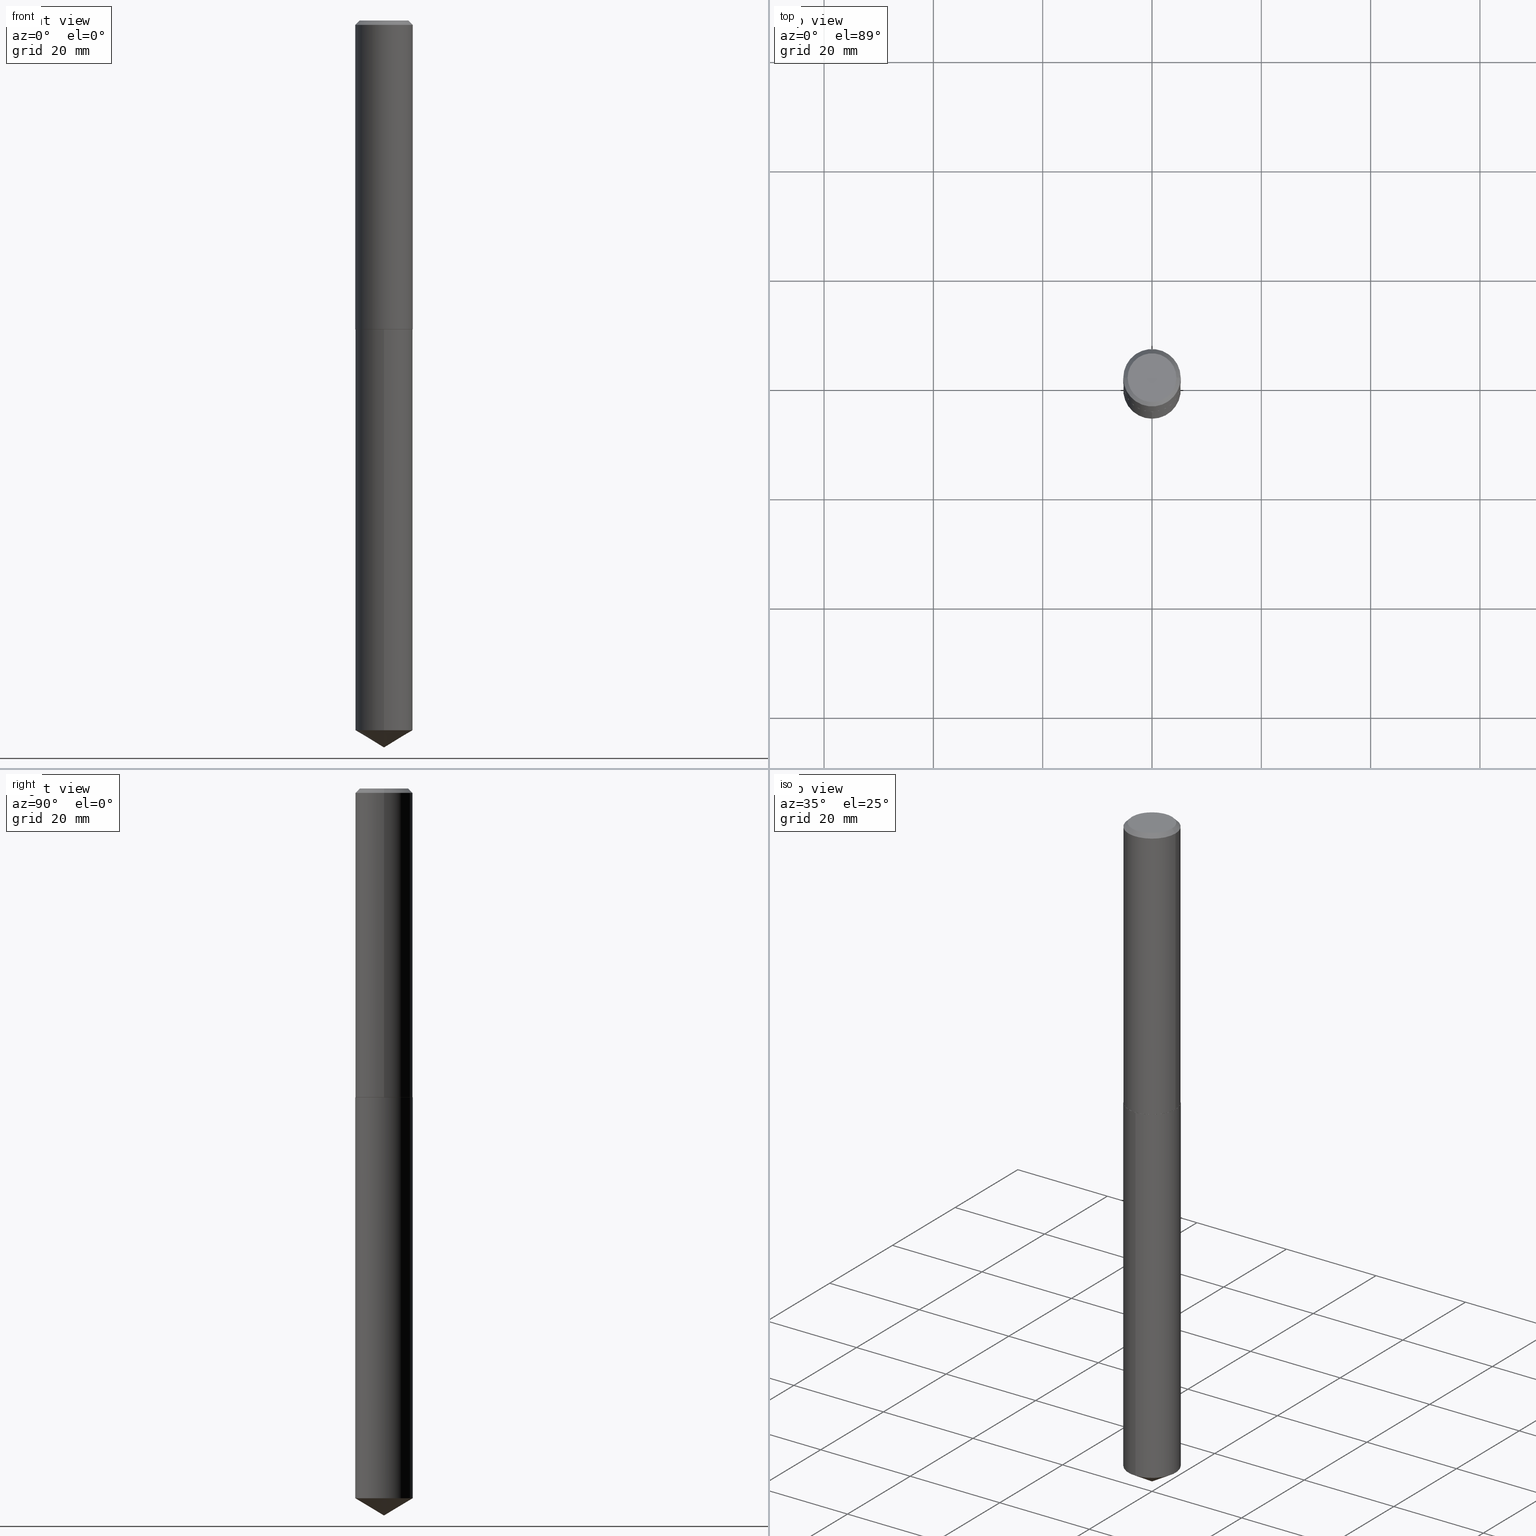
[diagram: canonical four-view strip — front | top / right | iso, engineering-drawing reading convention]
A machine part, canonical four-view strip (front | top / right | iso — engineering-drawing reading convention). The complete STEP part file that produces these views, byte-faithful:
ISO-10303-21;
HEADER;
FILE_DESCRIPTION (( 'STEP AP203' ),
    '1' );
FILE_NAME ('61045.STEP',
    '2024-04-23T02:38:39',
    ( '' ),
    ( '' ),
    'SwSTEP 2.0',
    'SolidWorks 2023',
    '' );
FILE_SCHEMA (( 'CONFIG_CONTROL_DESIGN' ));
ENDSEC;

DATA;
#1 = ORIENTED_EDGE ( 'NONE', *, *, #356, .F. ) ;
#2 = MANIFOLD_SOLID_BREP ( 'Body-Move/Copy2[2]', #152 ) ;
#3 = LINE ( 'NONE', #366, #95 ) ;
#4 = ORIENTED_EDGE ( 'NONE', *, *, #121, .T. ) ;
#5 = ORIENTED_EDGE ( 'NONE', *, *, #25, .T. ) ;
#6 = CARTESIAN_POINT ( 'NONE',  ( -0.1754499999999999948, 1.279715197719478945E-15, 1.206277097151380300E-18 ) ) ;
#7 = AXIS2_PLACEMENT_3D ( 'NONE', #133, #169, #319 ) ;
#8 = DIRECTION ( 'NONE',  ( 1.000000000000000000, -6.982962677686267499E-15, 4.876214437063800301E-29 ) ) ;
#9 = CALENDAR_DATE ( 2024, 22, 4 ) ;
#10 = DIRECTION ( 'NONE',  ( 1.000000000000000000, -6.982962677686265133E-15, 0.000000000000000000 ) ) ;
#11 = DIRECTION ( 'NONE',  ( -2.445583999256879801E-29, 3.491316375808027033E-15, 1.000000000000000000 ) ) ;
#12 = DIRECTION ( 'NONE',  ( 1.000000000000000000, -6.982962677686261977E-15, 0.000000000000000000 ) ) ;
#13 = CARTESIAN_POINT ( 'NONE',  ( -0.2062000000000003830, -6.298662741811254594E-15, -2.224400000000000599 ) ) ;
#14 = DIRECTION ( 'NONE',  ( -2.445468806185136597E-29, 3.491481338843145583E-15, 1.000000000000000000 ) ) ;
#15 = VECTOR ( 'NONE', #345, 39.37007874015748143 ) ;
#16 = CARTESIAN_POINT ( 'NONE',  ( -1.474956506360338605E-47, 2.105846987104252615E-33, 6.031385485800694257E-19 ) ) ;
#17 = APPROVAL_PERSON_ORGANIZATION ( #192, #218, #97 ) ;
#18 = ORIENTED_EDGE ( 'NONE', *, *, #80, .T. ) ;
#19 = CARTESIAN_POINT ( 'NONE',  ( 1.280557143067407498E-28, -1.828123080700599174E-14, -5.236200000000000188 ) ) ;
#20 = EDGE_CURVE ( 'NONE', #27, #254, #190, .T. ) ;
#21 = DIRECTION ( 'NONE',  ( -6.982962677686265133E-15, -1.000000000000000000, 3.964946289788480107E-15 ) ) ;
#22 = APPROVAL_DATE_TIME ( #118, #140 ) ;
#23 = CIRCLE ( 'NONE', #264, 0.1754499999999999948 ) ;
#24 = LOCAL_TIME ( 22, 38, 39.00000000000000000, #92 ) ;
#25 = EDGE_CURVE ( 'NONE', #349, #344, #313, .T. ) ;
#26 =( CONVERSION_BASED_UNIT ( 'INCH', #87 ) LENGTH_UNIT ( ) NAMED_UNIT ( #265 ) );
#27 = VERTEX_POINT ( 'NONE', #156 ) ;
#28 = AXIS2_PLACEMENT_3D ( 'NONE', #132, #257, #222 ) ;
#29 = APPROVAL_DATE_TIME ( #371, #218 ) ;
#30 = ORIENTED_EDGE ( 'NONE', *, *, #352, .T. ) ;
#31 = ORIENTED_EDGE ( 'NONE', *, *, #281, .T. ) ;
#32 = CARTESIAN_POINT ( 'NONE',  ( 1.468691834816181282E-15, 0.2066999999999922510, -2.224400000000001487 ) ) ;
#33 = EDGE_CURVE ( 'NONE', #78, #27, #3, .T. ) ;
#34 = CONICAL_SURFACE ( 'NONE', #328, 0.2067000000000000226, 0.7853981633974449483 ) ;
#35 = EDGE_LOOP ( 'NONE', ( #217, #125 ) ) ;
#36 = DIRECTION ( 'NONE',  ( -5.985567269335953112E-15, -0.8571673007021117785, 0.5150380749100550437 ) ) ;
#37 = CARTESIAN_POINT ( 'NONE',  ( -0.2067000000000002724, -6.296013514637144970E-15, -2.223900000000000432 ) ) ;
#38 = DATE_TIME_ROLE ( 'classification_date' ) ;
#39 = CARTESIAN_POINT ( 'NONE',  ( 5.439700812478219136E-29, -7.766451090122694310E-15, -2.224400000000000599 ) ) ;
#40 = CIRCLE ( 'NONE', #68, 0.1754499999999999948 ) ;
#41 = DIRECTION ( 'NONE',  ( -6.982962677686265133E-15, -1.000000000000000000, 5.286595053051307336E-15 ) ) ;
#42 = CARTESIAN_POINT ( 'NONE',  ( 0.2067000000000002724, -9.208083734931026389E-15, -2.223900000000000432 ) ) ;
#43 = APPLICATION_CONTEXT ( 'configuration controlled 3d designs of mechanical parts and assemblies' ) ;
#44 = CC_DESIGN_PERSON_AND_ORGANIZATION_ASSIGNMENT ( #145, #54, ( #253 ) ) ;
#45 = CARTESIAN_POINT ( 'NONE',  ( -1.443378385477626181E-15, -0.2067000000000178694, -5.112002110047003001 ) ) ;
#46 = DIRECTION ( 'NONE',  ( 0.7071067811865451302, -7.319954787623248157E-15, -0.7071067811865499042 ) ) ;
#47 = DIRECTION ( 'NONE',  ( 1.000000000000000000, -6.982962677686261977E-15, 0.000000000000000000 ) ) ;
#48 = ORIENTED_EDGE ( 'NONE', *, *, #93, .F. ) ;
#49 = VECTOR ( 'NONE', #36, 39.37007874015748143 ) ;
#50 = DIRECTION ( 'NONE',  ( -2.445468806185136597E-29, 3.491481338843145583E-15, 1.000000000000000000 ) ) ;
#51 = CONICAL_SURFACE ( 'NONE', #153, 0.2067000000000000226, 0.7853981633974449483 ) ;
#52 = DIRECTION ( 'NONE',  ( -6.982962677686265133E-15, -1.000000000000000000, 5.286595053051307336E-15 ) ) ;
#53 = PERSON_AND_ORGANIZATION ( #282, #343 ) ;
#54 = PERSON_AND_ORGANIZATION_ROLE ( 'design_owner' ) ;
#55 = AXIS2_PLACEMENT_3D ( 'NONE', #314, #339, #138 ) ;
#56 = EDGE_CURVE ( 'NONE', #62, #201, #369, .T. ) ;
#57 = DIRECTION ( 'NONE',  ( 2.445583999256879240E-29, -3.491316375808027033E-15, -1.000000000000000000 ) ) ;
#58 = PERSON_AND_ORGANIZATION ( #282, #343 ) ;
#59 = ORIENTED_EDGE ( 'NONE', *, *, #25, .F. ) ;
#60 = AXIS2_PLACEMENT_3D ( 'NONE', #377, #108, #102 ) ;
#61 = CC_DESIGN_DATE_AND_TIME_ASSIGNMENT ( #231, #299, ( #131 ) ) ;
#62 = VERTEX_POINT ( 'NONE', #73 ) ;
#63 = APPLICATION_CONTEXT ( 'configuration controlled 3d designs of mechanical parts and assemblies' ) ;
#64 = ORIENTED_EDGE ( 'NONE', *, *, #137, .F. ) ;
#65 = MECHANICAL_CONTEXT ( 'NONE', #43, 'mechanical' ) ;
#66 = CC_DESIGN_DATE_AND_TIME_ASSIGNMENT ( #180, #38, ( #115 ) ) ;
#67 = DIRECTION ( 'NONE',  ( -0.7071067811865451302, 2.468850131082231817E-15, -0.7071067811865499042 ) ) ;
#68 = AXIS2_PLACEMENT_3D ( 'NONE', #146, #271, #8 ) ;
#69 = APPROVAL_PERSON_ORGANIZATION ( #242, #140, #177 ) ;
#70 = ORIENTED_EDGE ( 'NONE', *, *, #137, .T. ) ;
#71 = DIRECTION ( 'NONE',  ( -2.445583999256879801E-29, 3.491316375808027033E-15, 1.000000000000000000 ) ) ;
#72 = PERSON_AND_ORGANIZATION_ROLE ( 'classification_officer' ) ;
#73 = CARTESIAN_POINT ( 'NONE',  ( 0.2067000000000002724, -9.208083734931026389E-15, -2.223900000000000432 ) ) ;
#74 = DIRECTION ( 'NONE',  ( -2.438088387897960049E-29, 3.491481338843145188E-15, 1.000000000000000000 ) ) ;
#75 = AXIS2_PLACEMENT_3D ( 'NONE', #39, #225, #10 ) ;
#76 = DIRECTION ( 'NONE',  ( 1.000000000000000000, -6.982962677686265133E-15, 0.000000000000000000 ) ) ;
#77 = LINE ( 'NONE', #232, #361 ) ;
#78 = VERTEX_POINT ( 'NONE', #6 ) ;
#79 = DIRECTION ( 'NONE',  ( -2.445583999256879801E-29, 3.491316375808027033E-15, 1.000000000000000000 ) ) ;
#80 = EDGE_CURVE ( 'NONE', #335, #216, #262, .T. ) ;
#81 = DIRECTION ( 'NONE',  ( 1.000000000000000000, -6.982962677686266711E-15, 4.876176775795936914E-29 ) ) ;
#82 = DIRECTION ( 'NONE',  ( 2.445468806185136597E-29, -3.491481338843145583E-15, -1.000000000000000000 ) ) ;
#83 = ORIENTED_EDGE ( 'NONE', *, *, #281, .F. ) ;
#84 = CIRCLE ( 'NONE', #247, 0.2062000000000003830 ) ;
#85 = DATE_AND_TIME ( #240, #388 ) ;
#86 = CARTESIAN_POINT ( 'NONE',  ( 5.438478078075126334E-29, -7.764705349453273595E-15, -2.223900000000000432 ) ) ;
#87 = LENGTH_MEASURE_WITH_UNIT ( LENGTH_MEASURE( 0.02539999999999999897 ), #305 );
#88 = COORDINATED_UNIVERSAL_TIME_OFFSET ( 5, 0, .BEHIND. ) ;
#89 = ADVANCED_FACE ( 'NONE', ( #290 ), #341, .T. ) ;
#90 = CONICAL_SURFACE ( 'NONE', #219, 65.52281426576880108, 1.029744258676656976 ) ;
#91 = VECTOR ( 'NONE', #207, 39.37007874015748854 ) ;
#92 = COORDINATED_UNIVERSAL_TIME_OFFSET ( 5, 0, .BEHIND. ) ;
#93 = EDGE_CURVE ( 'NONE', #254, #27, #114, .T. ) ;
#94 = ORIENTED_EDGE ( 'NONE', *, *, #179, .F. ) ;
#95 = VECTOR ( 'NONE', #67, 39.37007874015748143 ) ;
#96 =( GEOMETRIC_REPRESENTATION_CONTEXT ( 3 ) GLOBAL_UNCERTAINTY_ASSIGNED_CONTEXT ( ( #220 ) ) GLOBAL_UNIT_ASSIGNED_CONTEXT ( ( #26, #199, #230 ) ) REPRESENTATION_CONTEXT ( 'NONE', 'WORKASPACE' ) );
#97 = APPROVAL_ROLE ( '' ) ;
#98 = VERTEX_POINT ( 'NONE', #194 ) ;
#99 = ORIENTED_EDGE ( 'NONE', *, *, #121, .F. ) ;
#100 = VERTEX_POINT ( 'NONE', #13 ) ;
#101 = AXIS2_PLACEMENT_3D ( 'NONE', #248, #278, #363 ) ;
#102 = DIRECTION ( 'NONE',  ( 1.000000000000000000, -6.982962677686265133E-15, 0.000000000000000000 ) ) ;
#103 = FACE_OUTER_BOUND ( 'NONE', #184, .T. ) ;
#104 = CARTESIAN_POINT ( 'NONE',  ( 1.468691834816251885E-15, 0.2066999999999821203, -5.112002110047005665 ) ) ;
#105 = CARTESIAN_POINT ( 'NONE',  ( 1.250157432902957539E-28, -1.784798362374761104E-14, -5.112002110047003889 ) ) ;
#106 = LINE ( 'NONE', #327, #141 ) ;
#107 = ORIENTED_EDGE ( 'NONE', *, *, #325, .F. ) ;
#108 = DIRECTION ( 'NONE',  ( -2.445468806185136597E-29, 3.491481338843145583E-15, 1.000000000000000000 ) ) ;
#109 = FACE_OUTER_BOUND ( 'NONE', #360, .T. ) ;
#110 = EDGE_CURVE ( 'NONE', #349, #216, #158, .T. ) ;
#111 = ORIENTED_EDGE ( 'NONE', *, *, #110, .F. ) ;
#112 = PERSON_AND_ORGANIZATION ( #282, #343 ) ;
#113 = CARTESIAN_POINT ( 'NONE',  ( 5.438478078075126334E-29, -7.764705349453273595E-15, -2.223900000000000432 ) ) ;
#114 = CIRCLE ( 'NONE', #60, 0.2067000000000000226 ) ;
#115 = SECURITY_CLASSIFICATION ( '', '', #245 ) ;
#116 = PRODUCT_DEFINITION_FORMATION_WITH_SPECIFIED_SOURCE ( 'ANY', '', #253, .NOT_KNOWN. ) ;
#117 = DIRECTION ( 'NONE',  ( -6.982962677686265133E-15, -1.000000000000000000, 3.964946289788480107E-15 ) ) ;
#118 = DATE_AND_TIME ( #385, #383 ) ;
#119 = ADVANCED_FACE ( 'NONE', ( #103 ), #90, .T. ) ;
#120 = LOCAL_TIME ( 22, 38, 39.00000000000000000, #307 ) ;
#121 = EDGE_CURVE ( 'NONE', #62, #254, #316, .T. ) ;
#122 = ORIENTED_EDGE ( 'NONE', *, *, #365, .F. ) ;
#123 = EDGE_LOOP ( 'NONE', ( #277, #143, #275, #107 ) ) ;
#124 = APPROVAL_STATUS ( 'not_yet_approved' ) ;
#125 = ORIENTED_EDGE ( 'NONE', *, *, #234, .T. ) ;
#126 = CIRCLE ( 'NONE', #239, 0.2067000000000002724 ) ;
#127 = ORIENTED_EDGE ( 'NONE', *, *, #20, .F. ) ;
#128 = ORIENTED_EDGE ( 'NONE', *, *, #261, .F. ) ;
#129 = ORIENTED_EDGE ( 'NONE', *, *, #189, .F. ) ;
#130 = CARTESIAN_POINT ( 'NONE',  ( 5.439700812478219136E-29, -7.766451090122694310E-15, -2.224400000000000599 ) ) ;
#131 = PRODUCT_DEFINITION ( 'UNKNOWN', '', #116, #134 ) ;
#132 = CARTESIAN_POINT ( 'NONE',  ( 5.439700812478219136E-29, -7.766451090122694310E-15, -2.224400000000000599 ) ) ;
#133 = CARTESIAN_POINT ( 'NONE',  ( 5.439700812478219136E-29, -7.766451090122694310E-15, -2.224400000000000599 ) ) ;
#134 = DESIGN_CONTEXT ( 'detailed design', #63, 'design' ) ;
#135 = CARTESIAN_POINT ( 'NONE',  ( 0.2067000000000001336, -1.443378385477752202E-15, 1.007905739557020761E-29 ) ) ;
#136 = FACE_OUTER_BOUND ( 'NONE', #246, .T. ) ;
#137 = EDGE_CURVE ( 'NONE', #216, #349, #358, .T. ) ;
#138 = DIRECTION ( 'NONE',  ( 1.000000000000000000, -6.982962677686261977E-15, 0.000000000000000000 ) ) ;
#139 = DIRECTION ( 'NONE',  ( -0.7071067811865474617, 7.493145998870352582E-15, 0.7071067811865474617 ) ) ;
#140 = APPROVAL ( #209, 'UNSPECIFIED' ) ;
#141 = VECTOR ( 'NONE', #46, 39.37007874015748143 ) ;
#142 = CARTESIAN_POINT ( 'NONE',  ( 7.642090019328604414E-31, -1.091087918388490513E-16, -0.03125000000000021511 ) ) ;
#143 = ORIENTED_EDGE ( 'NONE', *, *, #261, .T. ) ;
#144 = DIRECTION ( 'NONE',  ( -1.000000000000000000, 6.982962677686265922E-15, -4.876176775795935793E-29 ) ) ;
#145 = PERSON_AND_ORGANIZATION ( #282, #343 ) ;
#146 = CARTESIAN_POINT ( 'NONE',  ( -2.949913012720677210E-47, 4.211693974208505230E-33, 1.206277097160138851E-18 ) ) ;
#147 = CIRCLE ( 'NONE', #28, 0.2067000000000000226 ) ;
#148 = CC_DESIGN_APPROVAL ( #140, ( #131 ) ) ;
#149 = ADVANCED_FACE ( 'NONE', ( #166 ), #259, .T. ) ;
#150 = CC_DESIGN_PERSON_AND_ORGANIZATION_ASSIGNMENT ( #58, #256, ( #116 ) ) ;
#151 = DIRECTION ( 'NONE',  ( -2.445583999256879801E-29, 3.491316375808027033E-15, 1.000000000000000000 ) ) ;
#152 = CLOSED_SHELL ( 'NONE', ( #215, #252, #294, #289, #268, #149, #353, #322 ) ) ;
#153 = AXIS2_PLACEMENT_3D ( 'NONE', #142, #82, #164 ) ;
#154 = EDGE_LOOP ( 'NONE', ( #70, #5, #129, #94 ) ) ;
#155 = EDGE_LOOP ( 'NONE', ( #298, #31, #191, #389 ) ) ;
#156 = CARTESIAN_POINT ( 'NONE',  ( -0.2067000000000000226, -2.468215235829932328E-15, -0.03125000000000021511 ) ) ;
#157 = CC_DESIGN_PERSON_AND_ORGANIZATION_ASSIGNMENT ( #53, #386, ( #116 ) ) ;
#158 = CIRCLE ( 'NONE', #274, 0.2067000000000000226 ) ;
#159 = ORIENTED_EDGE ( 'NONE', *, *, #208, .T. ) ;
#160 = APPLICATION_PROTOCOL_DEFINITION ( 'international standard', 'config_control_design', 1994, #43 ) ;
#161 = LINE ( 'NONE', #370, #244 ) ;
#162 = CC_DESIGN_PERSON_AND_ORGANIZATION_ASSIGNMENT ( #112, #357, ( #131 ) ) ;
#163 = SHAPE_DEFINITION_REPRESENTATION ( #387, #376 ) ;
#164 = DIRECTION ( 'NONE',  ( -1.000000000000000000, 6.982962677686265133E-15, 0.000000000000000000 ) ) ;
#165 = AXIS2_PLACEMENT_3D ( 'NONE', #113, #236, #47 ) ;
#166 = FACE_OUTER_BOUND ( 'NONE', #170, .T. ) ;
#167 = LINE ( 'NONE', #42, #297 ) ;
#168 = PLANE ( 'NONE',  #330 ) ;
#169 = DIRECTION ( 'NONE',  ( -2.445583999256879801E-29, 3.491316375808027033E-15, 1.000000000000000000 ) ) ;
#170 = EDGE_LOOP ( 'NONE', ( #205, #333, #4, #127 ) ) ;
#171 = AXIS2_PLACEMENT_3D ( 'NONE', #374, #384, #117 ) ;
#172 = AXIS2_PLACEMENT_3D ( 'NONE', #223, #57, #355 ) ;
#173 = CARTESIAN_POINT ( 'NONE',  ( 1.468691834816252279E-15, 0.2066999999999922510, -2.224400000000001487 ) ) ;
#174 = FACE_OUTER_BOUND ( 'NONE', #155, .T. ) ;
#175 = AXIS2_PLACEMENT_3D ( 'NONE', #266, #293, #291 ) ;
#176 = PERSON_AND_ORGANIZATION ( #282, #343 ) ;
#177 = APPROVAL_ROLE ( '' ) ;
#178 = CARTESIAN_POINT ( 'NONE',  ( -1.443378385477696981E-15, -0.2067000000000077664, -2.224399999999999711 ) ) ;
#179 = EDGE_CURVE ( 'NONE', #216, #381, #161, .T. ) ;
#180 = DATE_AND_TIME ( #9, #24 ) ;
#181 = ORIENTED_EDGE ( 'NONE', *, *, #250, .T. ) ;
#182 = AXIS2_PLACEMENT_3D ( 'NONE', #280, #50, #81 ) ;
#183 = PERSON_AND_ORGANIZATION ( #282, #343 ) ;
#184 = EDGE_LOOP ( 'NONE', ( #1, #18, #111 ) ) ;
#185 = APPROVAL ( #347, 'UNSPECIFIED' ) ;
#186 = ORIENTED_EDGE ( 'NONE', *, *, #208, .F. ) ;
#187 = CYLINDRICAL_SURFACE ( 'NONE', #182, 0.2067000000000001336 ) ;
#188 = EDGE_LOOP ( 'NONE', ( #359, #30, #48, #99 ) ) ;
#189 = EDGE_CURVE ( 'NONE', #381, #344, #210, .T. ) ;
#190 = CIRCLE ( 'NONE', #101, 0.2067000000000000226 ) ;
#191 = ORIENTED_EDGE ( 'NONE', *, *, #93, .T. ) ;
#192 = PERSON_AND_ORGANIZATION ( #282, #343 ) ;
#193 = CARTESIAN_POINT ( 'NONE',  ( 7.642090019328604414E-31, -1.091087918388490513E-16, -0.03125000000000021511 ) ) ;
#194 = CARTESIAN_POINT ( 'NONE',  ( 0.2062000000000003830, -9.206337994261605674E-15, -2.224400000000000599 ) ) ;
#195 = CYLINDRICAL_SURFACE ( 'NONE', #7, 0.2067000000000000226 ) ;
#196 = AXIS2_PLACEMENT_3D ( 'NONE', #346, #342, #203 ) ;
#197 = APPROVAL_PERSON_ORGANIZATION ( #176, #185, #235 ) ;
#198 = CARTESIAN_POINT ( 'NONE',  ( 1.250157432902957539E-28, -1.784798362374761104E-14, -5.112002110047003889 ) ) ;
#199 =( NAMED_UNIT ( * ) PLANE_ANGLE_UNIT ( ) SI_UNIT ( $, .RADIAN. ) );
#200 = FACE_OUTER_BOUND ( 'NONE', #123, .T. ) ;
#201 = VERTEX_POINT ( 'NONE', #37 ) ;
#202 = DIRECTION ( 'NONE',  ( 1.000000000000000000, -6.982962677686266711E-15, 4.876176775795936914E-29 ) ) ;
#203 = DIRECTION ( 'NONE',  ( 1.000000000000000000, -6.982962677686261977E-15, 0.000000000000000000 ) ) ;
#204 = LINE ( 'NONE', #19, #91 ) ;
#205 = ORIENTED_EDGE ( 'NONE', *, *, #352, .F. ) ;
#206 = APPROVAL_DATE_TIME ( #85, #185 ) ;
#207 = DIRECTION ( 'NONE',  ( 6.090539988449788691E-15, 0.8571673007021154422, 0.5150380749100490485 ) ) ;
#208 = EDGE_CURVE ( 'NONE', #100, #98, #84, .T. ) ;
#209 = APPROVAL_STATUS ( 'not_yet_approved' ) ;
#210 = CIRCLE ( 'NONE', #171, 0.2067000000000000226 ) ;
#211 = CALENDAR_DATE ( 2024, 22, 4 ) ;
#212 = EDGE_LOOP ( 'NONE', ( #128, #159, #337, #276 ) ) ;
#213 = ORIENTED_EDGE ( 'NONE', *, *, #250, .F. ) ;
#214 = CIRCLE ( 'NONE', #75, 0.2062000000000003830 ) ;
#215 = ADVANCED_FACE ( 'NONE', ( #174 ), #34, .T. ) ;
#216 = VERTEX_POINT ( 'NONE', #45 ) ;
#217 = ORIENTED_EDGE ( 'NONE', *, *, #227, .T. ) ;
#218 = APPROVAL ( #124, 'UNSPECIFIED' ) ;
#219 = AXIS2_PLACEMENT_3D ( 'NONE', #228, #354, #317 ) ;
#220 = UNCERTAINTY_MEASURE_WITH_UNIT (LENGTH_MEASURE( 1.000000000000000082E-05 ), #26, 'distance_accuracy_value', 'NONE');
#221 = CARTESIAN_POINT ( 'NONE',  ( 0.000000000000000000, 0.000000000000000000, 0.000000000000000000 ) ) ;
#222 = DIRECTION ( 'NONE',  ( -6.982962677686265133E-15, -1.000000000000000000, 3.964946289788480107E-15 ) ) ;
#223 = CARTESIAN_POINT ( 'NONE',  ( 5.439700812478219136E-29, -7.766451090122694310E-15, -2.224400000000000599 ) ) ;
#224 = DIRECTION ( 'NONE',  ( -1.000000000000000000, 6.982962677686265133E-15, 0.000000000000000000 ) ) ;
#225 = DIRECTION ( 'NONE',  ( -2.445468806185136597E-29, 3.491481338843145583E-15, 1.000000000000000000 ) ) ;
#226 = LOCAL_TIME ( 22, 38, 39.00000000000000000, #88 ) ;
#227 = EDGE_CURVE ( 'NONE', #78, #312, #23, .T. ) ;
#228 = CARTESIAN_POINT ( 'NONE',  ( -8.347752391497250692E-28, 1.191718028715819728E-13, 34.13387874015747769 ) ) ;
#229 = FACE_OUTER_BOUND ( 'NONE', #212, .T. ) ;
#230 =( NAMED_UNIT ( * ) SI_UNIT ( $, .STERADIAN. ) SOLID_ANGLE_UNIT ( ) );
#231 = DATE_AND_TIME ( #211, #226 ) ;
#232 = CARTESIAN_POINT ( 'NONE',  ( -0.2067000000000002724, -6.296013514637144970E-15, -2.223900000000000432 ) ) ;
#233 = EDGE_LOOP ( 'NONE', ( #59, #390, #267, #213 ) ) ;
#234 = EDGE_CURVE ( 'NONE', #312, #78, #40, .T. ) ;
#235 = APPROVAL_ROLE ( '' ) ;
#236 = DIRECTION ( 'NONE',  ( -2.445468806185136597E-29, 3.491481338843145583E-15, 1.000000000000000000 ) ) ;
#237 = AXIS2_PLACEMENT_3D ( 'NONE', #221, #338, #202 ) ;
#238 = CONICAL_SURFACE ( 'NONE', #175, 65.52281426576880108, 1.029744258676656976 ) ;
#239 = AXIS2_PLACEMENT_3D ( 'NONE', #86, #14, #12 ) ;
#240 = CALENDAR_DATE ( 2024, 22, 4 ) ;
#241 = DIRECTION ( 'NONE',  ( -2.445583999256879801E-29, 3.491316375808027033E-15, 1.000000000000000000 ) ) ;
#242 = PERSON_AND_ORGANIZATION ( #282, #343 ) ;
#243 = CARTESIAN_POINT ( 'NONE',  ( 0.000000000000000000, 0.000000000000000000, 0.000000000000000000 ) ) ;
#244 = VECTOR ( 'NONE', #71, 39.37007874015748143 ) ;
#245 = SECURITY_CLASSIFICATION_LEVEL ( 'unclassified' ) ;
#246 = EDGE_LOOP ( 'NONE', ( #368, #310, #64 ) ) ;
#247 = AXIS2_PLACEMENT_3D ( 'NONE', #130, #372, #76 ) ;
#248 = CARTESIAN_POINT ( 'NONE',  ( 7.642090019328604414E-31, -1.091087918388490513E-16, -0.03125000000000021511 ) ) ;
#249 = FACE_OUTER_BOUND ( 'NONE', #188, .T. ) ;
#250 = EDGE_CURVE ( 'NONE', #344, #381, #147, .T. ) ;
#251 = EDGE_LOOP ( 'NONE', ( #323, #181 ) ) ;
#252 = ADVANCED_FACE ( 'NONE', ( #249 ), #187, .T. ) ;
#253 = PRODUCT ( '61045', '61045', '', ( #65 ) ) ;
#254 = VERTEX_POINT ( 'NONE', #380 ) ;
#255 = CARTESIAN_POINT ( 'NONE',  ( 1.280505446597130309E-28, -1.828196469455662794E-14, -5.236200000000000188 ) ) ;
#256 = PERSON_AND_ORGANIZATION_ROLE ( 'design_supplier' ) ;
#257 = DIRECTION ( 'NONE',  ( -2.445583999256879801E-29, 3.491316375808027033E-15, 1.000000000000000000 ) ) ;
#258 = FACE_OUTER_BOUND ( 'NONE', #251, .T. ) ;
#259 = CYLINDRICAL_SURFACE ( 'NONE', #237, 0.2067000000000001336 ) ;
#260 = CARTESIAN_POINT ( 'NONE',  ( 1.280556693690887530E-28, -1.828123080700599174E-14, -5.236200000000000188 ) ) ;
#261 = EDGE_CURVE ( 'NONE', #100, #201, #77, .T. ) ;
#262 = LINE ( 'NONE', #255, #49 ) ;
#263 = CARTESIAN_POINT ( 'NONE',  ( 0.1754499999999999948, -1.365424050843619950E-15, 1.206277097169196885E-18 ) ) ;
#264 = AXIS2_PLACEMENT_3D ( 'NONE', #301, #284, #321 ) ;
#265 = DIMENSIONAL_EXPONENTS ( 1.000000000000000000, 0.000000000000000000, 0.000000000000000000, 0.000000000000000000, 0.000000000000000000, 0.000000000000000000, 0.000000000000000000 ) ;
#266 = CARTESIAN_POINT ( 'NONE',  ( -8.347752391497250692E-28, 1.191718028715819728E-13, 34.13387874015747769 ) ) ;
#267 = ORIENTED_EDGE ( 'NONE', *, *, #179, .T. ) ;
#268 = ADVANCED_FACE ( 'NONE', ( #229 ), #285, .T. ) ;
#269 = CARTESIAN_POINT ( 'NONE',  ( -0.2067000000000001336, 1.468691834816128034E-15, -1.016743883155689846E-29 ) ) ;
#270 = AXIS2_PLACEMENT_3D ( 'NONE', #198, #79, #41 ) ;
#271 = DIRECTION ( 'NONE',  ( -2.445468806185136597E-29, 3.491481338843145583E-15, 1.000000000000000000 ) ) ;
#272 = MANIFOLD_SOLID_BREP ( 'Body-Move/Copy2[1]', #302 ) ;
#273 = APPLICATION_PROTOCOL_DEFINITION ( 'international standard', 'config_control_design', 1994, #63 ) ;
#274 = AXIS2_PLACEMENT_3D ( 'NONE', #105, #241, #52 ) ;
#275 = ORIENTED_EDGE ( 'NONE', *, *, #56, .F. ) ;
#276 = ORIENTED_EDGE ( 'NONE', *, *, #315, .F. ) ;
#277 = ORIENTED_EDGE ( 'NONE', *, *, #365, .T. ) ;
#278 = DIRECTION ( 'NONE',  ( -2.445468806185136597E-29, 3.491481338843145583E-15, 1.000000000000000000 ) ) ;
#279 = CC_DESIGN_APPROVAL ( #218, ( #115 ) ) ;
#280 = CARTESIAN_POINT ( 'NONE',  ( 0.000000000000000000, 0.000000000000000000, 0.000000000000000000 ) ) ;
#281 = EDGE_CURVE ( 'NONE', #312, #254, #106, .T. ) ;
#282 = PERSON ( 'UNSPECIFIED', 'UNSPECIFIED', 'UNSPECIFIED', ('UNSPECIFIED'), ('UNSPECIFIED'), ('UNSPECIFIED') ) ;
#283 = EDGE_LOOP ( 'NONE', ( #122, #186 ) ) ;
#284 = DIRECTION ( 'NONE',  ( -2.445468806185136597E-29, 3.491481338843145583E-15, 1.000000000000000000 ) ) ;
#285 = CONICAL_SURFACE ( 'NONE', #196, 0.2067000000000002724, 0.7853981633974482790 ) ;
#286 = DIRECTION ( 'NONE',  ( 0.7071067811865474617, -2.468850131082256666E-15, 0.7071067811865474617 ) ) ;
#287 = CC_DESIGN_APPROVAL ( #185, ( #116 ) ) ;
#288 = CC_DESIGN_SECURITY_CLASSIFICATION ( #115, ( #116 ) ) ;
#289 = ADVANCED_FACE ( 'NONE', ( #326 ), #168, .F. ) ;
#290 = FACE_OUTER_BOUND ( 'NONE', #154, .T. ) ;
#291 = DIRECTION ( 'NONE',  ( -6.982962677686266711E-15, -1.000000000000000000, 3.468864327941574493E-15 ) ) ;
#292 = CARTESIAN_POINT ( 'NONE',  ( 5.439700812478219136E-29, -7.766451090122694310E-15, -2.224400000000000599 ) ) ;
#293 = DIRECTION ( 'NONE',  ( -2.445583999256879801E-29, 3.491316375808027033E-15, 1.000000000000000000 ) ) ;
#294 = ADVANCED_FACE ( 'NONE', ( #200 ), #308, .T. ) ;
#295 = PLANE ( 'NONE',  #362 ) ;
#296 = CC_DESIGN_PERSON_AND_ORGANIZATION_ASSIGNMENT ( #183, #72, ( #115 ) ) ;
#297 = VECTOR ( 'NONE', #286, 39.37007874015748854 ) ;
#298 = ORIENTED_EDGE ( 'NONE', *, *, #234, .F. ) ;
#299 = DATE_TIME_ROLE ( 'creation_date' ) ;
#300 = LINE ( 'NONE', #269, #320 ) ;
#301 = CARTESIAN_POINT ( 'NONE',  ( -2.949913012720677210E-47, 4.211693974208505230E-33, 1.206277097160138851E-18 ) ) ;
#302 = CLOSED_SHELL ( 'NONE', ( #89, #306, #119, #303, #379 ) ) ;
#303 = ADVANCED_FACE ( 'NONE', ( #373 ), #195, .T. ) ;
#304 = COORDINATED_UNIVERSAL_TIME_OFFSET ( 5, 0, .BEHIND. ) ;
#305 =( LENGTH_UNIT ( ) NAMED_UNIT ( * ) SI_UNIT ( $, .METRE. ) );
#306 = ADVANCED_FACE ( 'NONE', ( #136 ), #238, .T. ) ;
#307 = COORDINATED_UNIVERSAL_TIME_OFFSET ( 5, 0, .BEHIND. ) ;
#308 = CONICAL_SURFACE ( 'NONE', #165, 0.2067000000000002724, 0.7853981633974482790 ) ;
#309 = AXIS2_PLACEMENT_3D ( 'NONE', #243, #332, #364 ) ;
#310 = ORIENTED_EDGE ( 'NONE', *, *, #356, .T. ) ;
#311 = CALENDAR_DATE ( 2024, 22, 4 ) ;
#312 = VERTEX_POINT ( 'NONE', #263 ) ;
#313 = LINE ( 'NONE', #32, #336 ) ;
#314 = CARTESIAN_POINT ( 'NONE',  ( 5.438478078075126334E-29, -7.764705349453273595E-15, -2.223900000000000432 ) ) ;
#315 = EDGE_CURVE ( 'NONE', #201, #62, #126, .T. ) ;
#316 = LINE ( 'NONE', #135, #15 ) ;
#317 = DIRECTION ( 'NONE',  ( -6.982962677686266711E-15, -1.000000000000000000, 3.468864327941574493E-15 ) ) ;
#318 = AXIS2_PLACEMENT_3D ( 'NONE', #292, #11, #21 ) ;
#319 = DIRECTION ( 'NONE',  ( -6.982962677686265133E-15, -1.000000000000000000, 3.964946289788480107E-15 ) ) ;
#320 = VECTOR ( 'NONE', #351, 39.37007874015748143 ) ;
#321 = DIRECTION ( 'NONE',  ( 1.000000000000000000, -6.982962677686267499E-15, 4.876214437063800301E-29 ) ) ;
#322 = ADVANCED_FACE ( 'NONE', ( #382 ), #295, .F. ) ;
#323 = ORIENTED_EDGE ( 'NONE', *, *, #189, .T. ) ;
#324 = DIRECTION ( 'NONE',  ( 2.445468806185136597E-29, -3.491481338843145583E-15, -1.000000000000000000 ) ) ;
#325 = EDGE_CURVE ( 'NONE', #98, #62, #167, .T. ) ;
#326 = FACE_OUTER_BOUND ( 'NONE', #283, .T. ) ;
#327 = CARTESIAN_POINT ( 'NONE',  ( 0.2067000000000000226, -1.527173727978224681E-15, -0.03125000000000021511 ) ) ;
#328 = AXIS2_PLACEMENT_3D ( 'NONE', #193, #324, #224 ) ;
#329 = ORIENTED_EDGE ( 'NONE', *, *, #227, .F. ) ;
#330 = AXIS2_PLACEMENT_3D ( 'NONE', #340, #74, #348 ) ;
#331 = ORIENTED_EDGE ( 'NONE', *, *, #20, .T. ) ;
#332 = DIRECTION ( 'NONE',  ( 0.000000000000000000, 0.000000000000000000, 1.000000000000000000 ) ) ;
#333 = ORIENTED_EDGE ( 'NONE', *, *, #315, .T. ) ;
#334 = PRODUCT_RELATED_PRODUCT_CATEGORY ( 'detail', '', ( #253 ) ) ;
#335 = VERTEX_POINT ( 'NONE', #260 ) ;
#336 = VECTOR ( 'NONE', #151, 39.37007874015748143 ) ;
#337 = ORIENTED_EDGE ( 'NONE', *, *, #325, .T. ) ;
#338 = DIRECTION ( 'NONE',  ( -2.445468806185136597E-29, 3.491481338843145583E-15, 1.000000000000000000 ) ) ;
#339 = DIRECTION ( 'NONE',  ( -2.445468806185136597E-29, 3.491481338843145583E-15, 1.000000000000000000 ) ) ;
#340 = CARTESIAN_POINT ( 'NONE',  ( 3.381818772862001322E-29, -1.071345529822491664E-14, -2.224400000000000599 ) ) ;
#341 = CYLINDRICAL_SURFACE ( 'NONE', #318, 0.2067000000000000226 ) ;
#342 = DIRECTION ( 'NONE',  ( -2.445468806185136597E-29, 3.491481338843145583E-15, 1.000000000000000000 ) ) ;
#343 = ORGANIZATION ( 'UNSPECIFIED', 'UNSPECIFIED', '' ) ;
#344 = VERTEX_POINT ( 'NONE', #173 ) ;
#345 = DIRECTION ( 'NONE',  ( -2.445468806185136877E-29, 3.491481338843145188E-15, 1.000000000000000000 ) ) ;
#346 = CARTESIAN_POINT ( 'NONE',  ( 5.438478078075126334E-29, -7.764705349453273595E-15, -2.223900000000000432 ) ) ;
#347 = APPROVAL_STATUS ( 'not_yet_approved' ) ;
#348 = DIRECTION ( 'NONE',  ( 1.000000000000000000, -6.982962677686265922E-15, 4.876176775795935793E-29 ) ) ;
#349 = VERTEX_POINT ( 'NONE', #104 ) ;
#350 = COORDINATED_UNIVERSAL_TIME_OFFSET ( 5, 0, .BEHIND. ) ;
#351 = DIRECTION ( 'NONE',  ( -2.445468806185136877E-29, 3.491481338843145188E-15, 1.000000000000000000 ) ) ;
#352 = EDGE_CURVE ( 'NONE', #201, #27, #300, .T. ) ;
#353 = ADVANCED_FACE ( 'NONE', ( #109 ), #51, .T. ) ;
#354 = DIRECTION ( 'NONE',  ( -2.445583999256879801E-29, 3.491316375808027033E-15, 1.000000000000000000 ) ) ;
#355 = DIRECTION ( 'NONE',  ( 6.982962677686265922E-15, 1.000000000000000000, -3.491316375808027033E-15 ) ) ;
#356 = EDGE_CURVE ( 'NONE', #335, #349, #204, .T. ) ;
#357 = PERSON_AND_ORGANIZATION_ROLE ( 'creator' ) ;
#358 = CIRCLE ( 'NONE', #270, 0.2067000000000000226 ) ;
#359 = ORIENTED_EDGE ( 'NONE', *, *, #56, .T. ) ;
#360 = EDGE_LOOP ( 'NONE', ( #83, #329, #367, #331 ) ) ;
#361 = VECTOR ( 'NONE', #139, 39.37007874015748854 ) ;
#362 = AXIS2_PLACEMENT_3D ( 'NONE', #16, #378, #144 ) ;
#363 = DIRECTION ( 'NONE',  ( 1.000000000000000000, -6.982962677686265133E-15, 0.000000000000000000 ) ) ;
#364 = DIRECTION ( 'NONE',  ( 1.000000000000000000, 0.000000000000000000, 0.000000000000000000 ) ) ;
#365 = EDGE_CURVE ( 'NONE', #98, #100, #214, .T. ) ;
#366 = CARTESIAN_POINT ( 'NONE',  ( -0.2067000000000000226, 1.334269593638902312E-15, -0.03125000000000021511 ) ) ;
#367 = ORIENTED_EDGE ( 'NONE', *, *, #33, .T. ) ;
#368 = ORIENTED_EDGE ( 'NONE', *, *, #80, .F. ) ;
#369 = CIRCLE ( 'NONE', #55, 0.2067000000000002724 ) ;
#370 = CARTESIAN_POINT ( 'NONE',  ( -1.443378385477696981E-15, -0.2067000000000077664, -2.224399999999999711 ) ) ;
#371 = DATE_AND_TIME ( #311, #120 ) ;
#372 = DIRECTION ( 'NONE',  ( -2.445468806185136597E-29, 3.491481338843145583E-15, 1.000000000000000000 ) ) ;
#373 = FACE_OUTER_BOUND ( 'NONE', #233, .T. ) ;
#374 = CARTESIAN_POINT ( 'NONE',  ( 5.439700812478219136E-29, -7.766451090122694310E-15, -2.224400000000000599 ) ) ;
#375 = PLANE ( 'NONE',  #172 ) ;
#376 = ADVANCED_BREP_SHAPE_REPRESENTATION ( '61045', ( #272, #2, #309 ), #96 ) ;
#377 = CARTESIAN_POINT ( 'NONE',  ( 7.642090019328604414E-31, -1.091087918388490513E-16, -0.03125000000000021511 ) ) ;
#378 = DIRECTION ( 'NONE',  ( 2.438088387897960049E-29, -3.491481338843145188E-15, -1.000000000000000000 ) ) ;
#379 = ADVANCED_FACE ( 'NONE', ( #258 ), #375, .F. ) ;
#380 = CARTESIAN_POINT ( 'NONE',  ( 0.2067000000000000226, -1.552487177316600316E-15, -0.03125000000000021511 ) ) ;
#381 = VERTEX_POINT ( 'NONE', #178 ) ;
#382 = FACE_OUTER_BOUND ( 'NONE', #35, .T. ) ;
#383 = LOCAL_TIME ( 22, 38, 39.00000000000000000, #304 ) ;
#384 = DIRECTION ( 'NONE',  ( -2.445583999256879801E-29, 3.491316375808027033E-15, 1.000000000000000000 ) ) ;
#385 = CALENDAR_DATE ( 2024, 22, 4 ) ;
#386 = PERSON_AND_ORGANIZATION_ROLE ( 'creator' ) ;
#387 = PRODUCT_DEFINITION_SHAPE ( 'NONE', 'NONE',  #131 ) ;
#388 = LOCAL_TIME ( 22, 38, 39.00000000000000000, #350 ) ;
#389 = ORIENTED_EDGE ( 'NONE', *, *, #33, .F. ) ;
#390 = ORIENTED_EDGE ( 'NONE', *, *, #110, .T. ) ;
ENDSEC;
END-ISO-10303-21;
